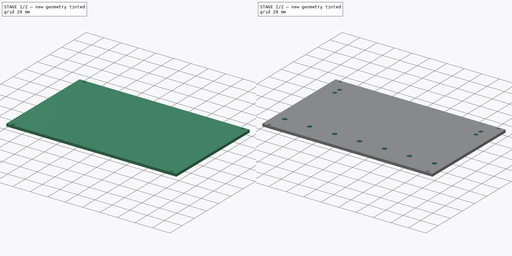
[diagram: build sequence overview — one tinted view per stage of 2, left to right]
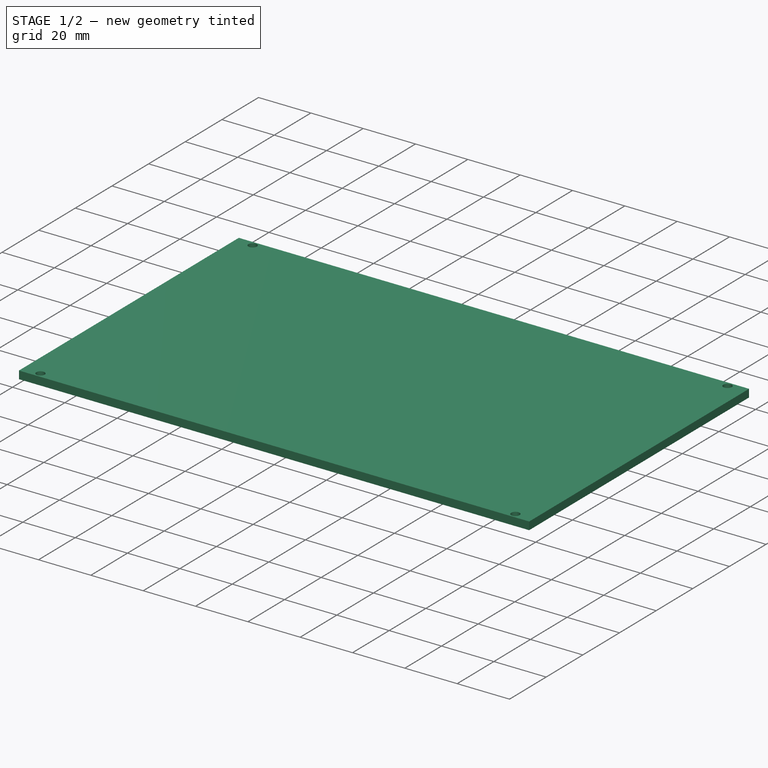
[diagram: stage 1 of 2 — iso view after this stage's code; geometry added in this stage tinted green]
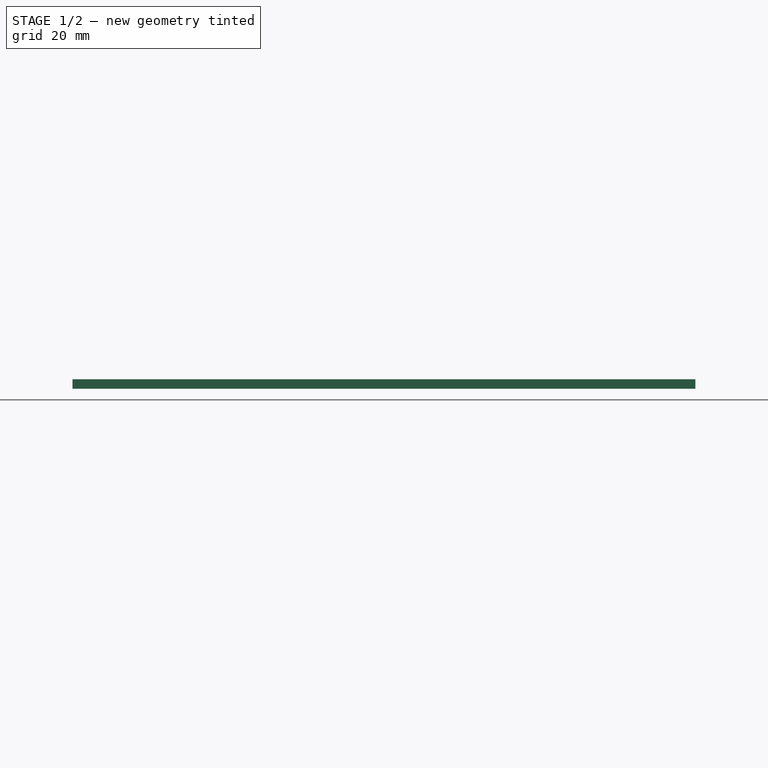
[diagram: stage 1 of 2 — front view after this stage's code; geometry added in this stage tinted green]
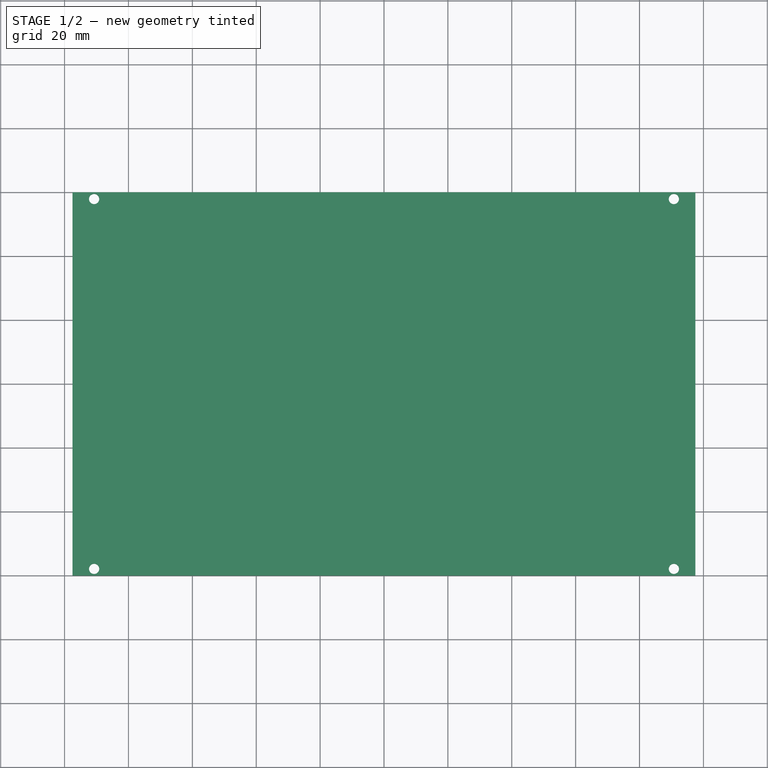
[diagram: stage 1 of 2 — top view after this stage's code; geometry added in this stage tinted green]
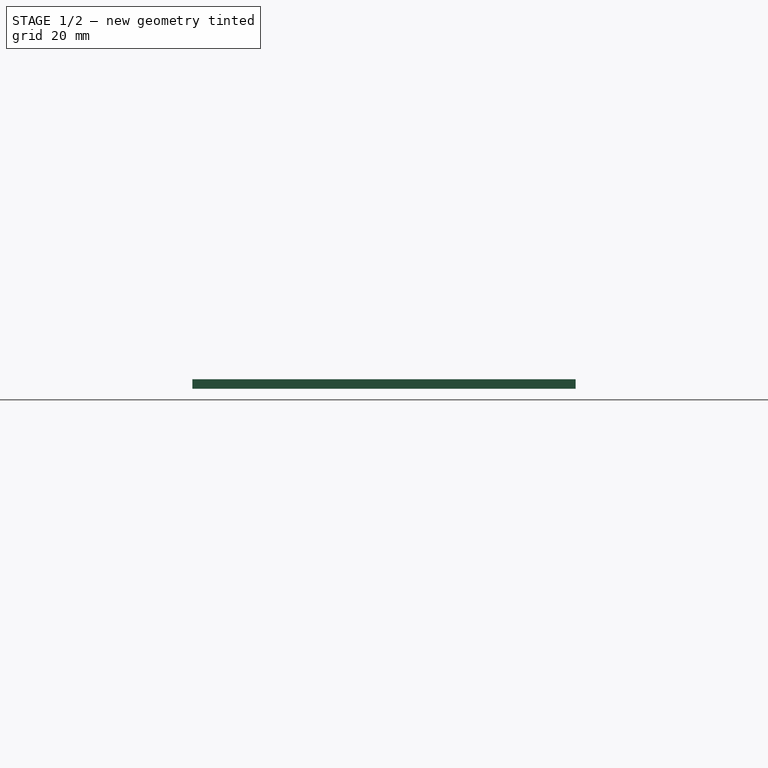
[diagram: stage 1 of 2 — right view after this stage's code; geometry added in this stage tinted green]
FCSTD DOCUMENT
Label: relay-mounting-plate
objects: Sketcher::SketchObject×3, PartDesign::Pocket×2, PartDesign::Pad×1
note: 9 computed .brp shape members not serialized (recipe doc carries the construction recipe); baked Part::Feature solids carry a one-line shape summary decoded from their .brp

FEATURE [Sketcher::SketchObject] Sketch
  sketch-geometry (4):
    g0: LineSegment StartX=-97.5 StartY=60 StartZ=0 EndX=97.5 EndY=60 EndZ=0
    g1: LineSegment StartX=97.5 StartY=60 StartZ=0 EndX=97.5 EndY=-60 EndZ=0
    g2: LineSegment StartX=97.5 StartY=-60 StartZ=0 EndX=-97.5 EndY=-60 EndZ=0
    g3: LineSegment StartX=-97.5 StartY=-60 StartZ=0 EndX=-97.5 EndY=60 EndZ=0
  constraints (12):
    c: Coincident(g0,g1)
    c: Coincident(g1,g2)
    c: Coincident(g2,g3)
    c: Coincident(g3,g0)
    c: Horizontal(g0)
    c: Horizontal(g2)
    c: Vertical(g1)
    c: Vertical(g3)
    c: Symmetric(g0,g2,g-1)
    c: Symmetric(g0,g0,g-2)
    c: DistanceX(g0) = 195
    c: DistanceY(g1) = -120
FEATURE [PartDesign::Pad] Pad
  Length = 3
  Length2 = 100
  Sketch = -> Sketch
  Type = 0
FEATURE [Sketcher::SketchObject] Sketch001
  Placement = pos=(0,0,3) rot=(0,0,1;0rad)
  Support = -> Pad [Face6]
  sketch-geometry (4):
    g0: Circle CenterX=-90.75 CenterY=57.9 CenterZ=0 NormalX=0 NormalY=0 NormalZ=1 Radius=1.6
    g1: Circle CenterX=90.75 CenterY=57.9 CenterZ=0 NormalX=0 NormalY=0 NormalZ=1 Radius=1.6
    g2: Circle CenterX=-90.75 CenterY=-57.9 CenterZ=0 NormalX=0 NormalY=0 NormalZ=1 Radius=1.6
    g3: Circle CenterX=90.75 CenterY=-57.9 CenterZ=0 NormalX=0 NormalY=0 NormalZ=1 Radius=1.6
  constraints (9):
    c: Equal(g0,g2)
    c: Equal(g2,g3)
    c: Equal(g3,g1)
    c: Radius(g1) = 1.6
    c: Symmetric(g0,g1,g-2)
    c: Symmetric(g0,g2,g-1)
    c: Symmetric(g3,g1,g-1)
    c: DistanceX(g0,g1) = 181.5
    c: DistanceY(g0,g2) = -115.8
FEATURE [PartDesign::Pocket] Pocket
  Length = 5
  Sketch = -> Sketch001
  Type = 0
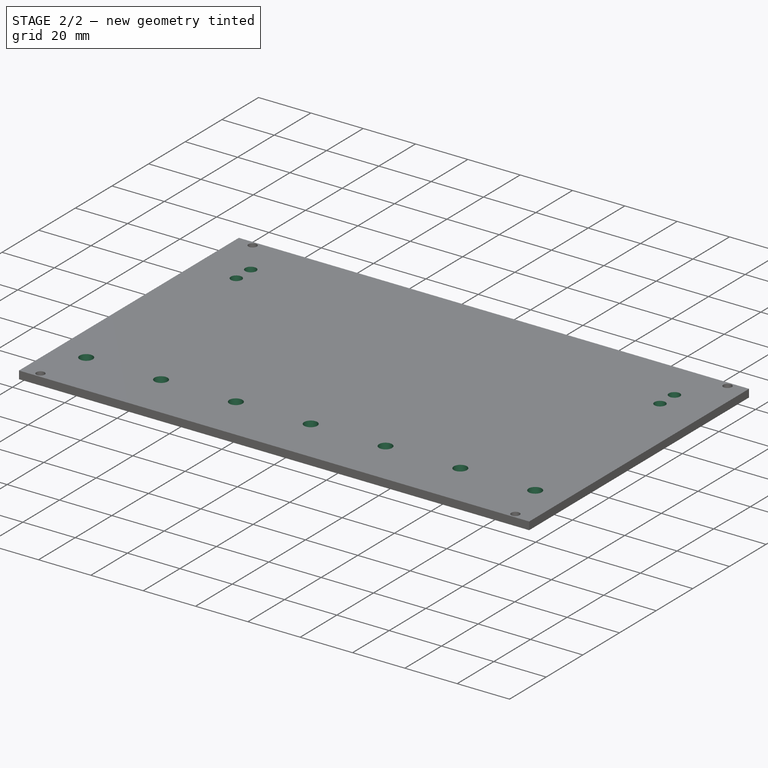
[diagram: stage 2 of 2 — iso view after this stage's code; geometry added in this stage tinted green]
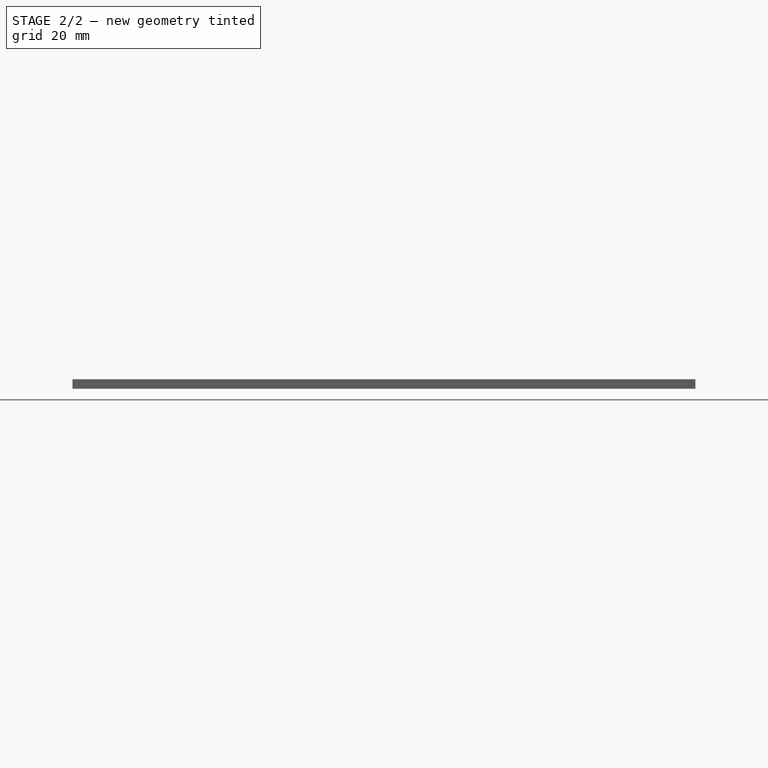
[diagram: stage 2 of 2 — front view after this stage's code; geometry added in this stage tinted green]
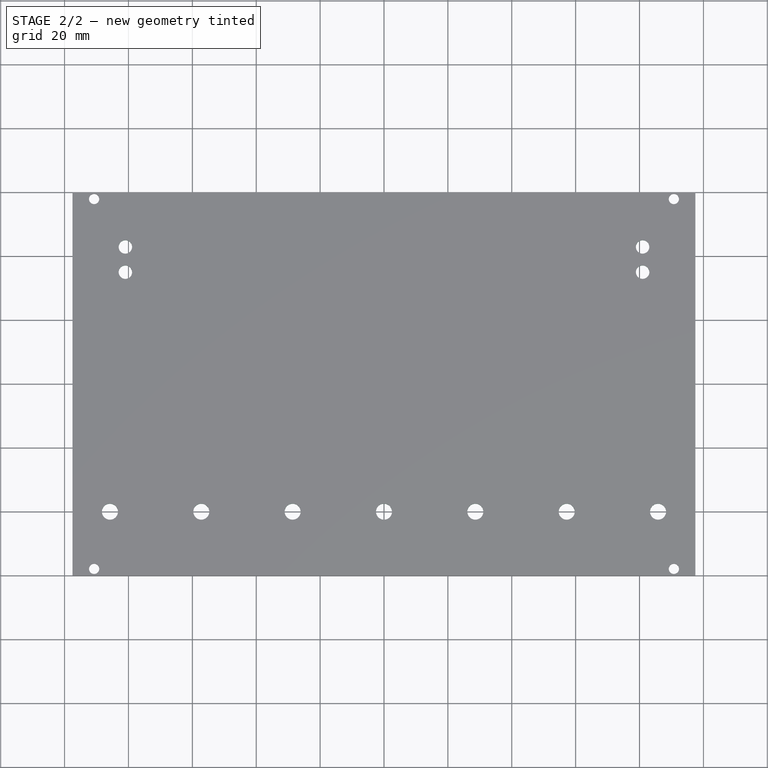
[diagram: stage 2 of 2 — top view after this stage's code; geometry added in this stage tinted green]
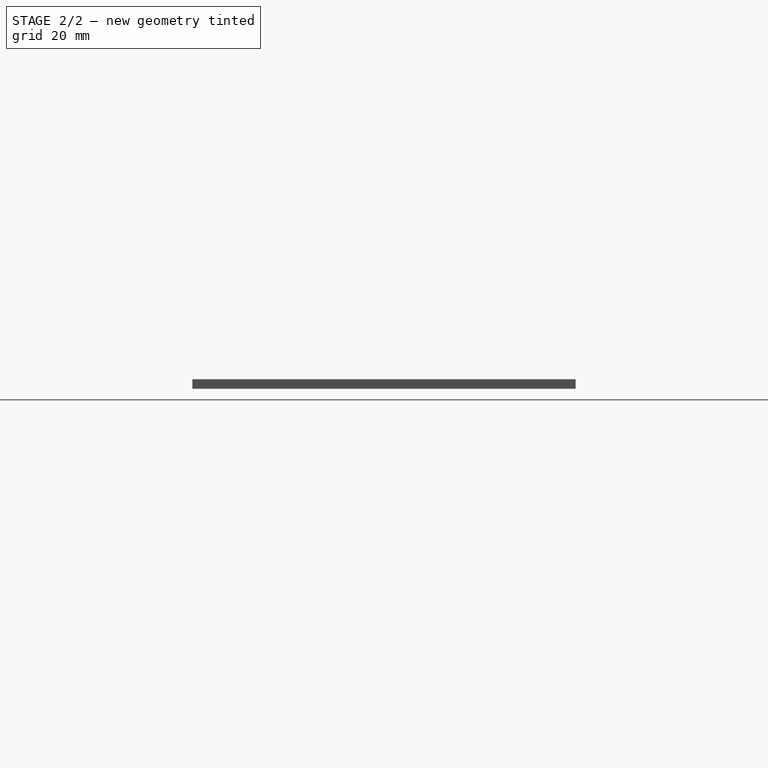
[diagram: stage 2 of 2 — right view after this stage's code; geometry added in this stage tinted green]
FEATURE [Sketcher::SketchObject] Sketch002
  Placement = pos=(0,0,3) rot=(0,0,1;0rad)
  Support = -> Pocket [Face5]
  sketch-geometry (20):
    g0: Circle CenterX=-57.2 CenterY=-40 CenterZ=0 NormalX=0 NormalY=0 NormalZ=1 Radius=2.5
    g1: LineSegment [constr] StartX=-57.2 StartY=-40 StartZ=0 EndX=-28.6 EndY=-40 EndZ=0
    g2: LineSegment [constr] StartX=-28.6 StartY=-40 StartZ=0 EndX=0 EndY=-40 EndZ=0
    g3: LineSegment [constr] StartX=0 StartY=-40 StartZ=0 EndX=28.6 EndY=-40 EndZ=0
    g4: LineSegment [constr] StartX=28.6 StartY=-40 StartZ=0 EndX=57.2 EndY=-40 EndZ=0
    g5: Circle CenterX=-28.6 CenterY=-40 CenterZ=0 NormalX=0 NormalY=0 NormalZ=1 Radius=2.5
    g6: Circle CenterX=0 CenterY=-40 CenterZ=0 NormalX=0 NormalY=0 NormalZ=1 Radius=2.5
    g7: Circle CenterX=28.6 CenterY=-40 CenterZ=0 NormalX=0 NormalY=0 NormalZ=1 Radius=2.5
    g8: Circle CenterX=57.2 CenterY=-40 CenterZ=0 NormalX=0 NormalY=0 NormalZ=1 Radius=2.5
    g9: LineSegment [constr] StartX=-57.2 StartY=25 StartZ=0 EndX=57.2 EndY=25 EndZ=0
    g10: LineSegment [constr] StartX=-57.2 StartY=25 StartZ=0 EndX=-57.2 EndY=-40 EndZ=0
    g11: Circle CenterX=-80.965 CenterY=42.9 CenterZ=0 NormalX=0 NormalY=0 NormalZ=1 Radius=2.1
    g12: Circle CenterX=-80.965 CenterY=35 CenterZ=0 NormalX=0 NormalY=0 NormalZ=1 Radius=2.1
    g13: Circle CenterX=80.965 CenterY=42.9 CenterZ=0 NormalX=0 NormalY=0 NormalZ=1 Radius=2.1
    g14: Circle CenterX=80.965 CenterY=35 CenterZ=0 NormalX=0 NormalY=0 NormalZ=1 Radius=2.1
    g15: LineSegment [constr] StartX=-80.965 StartY=42.9 StartZ=0 EndX=-80.965 EndY=35 EndZ=0
    g16: Circle CenterX=-85.8 CenterY=-40 CenterZ=0 NormalX=0 NormalY=0 NormalZ=1 Radius=2.5
    g17: Circle CenterX=85.8 CenterY=-40 CenterZ=0 NormalX=0 NormalY=0 NormalZ=1 Radius=2.5
    g18: LineSegment [constr] StartX=-85.8 StartY=-40 StartZ=0 EndX=-57.2 EndY=-40 EndZ=0
    g19: LineSegment [constr] StartX=57.2 StartY=-40 StartZ=0 EndX=85.8 EndY=-40 EndZ=0
  constraints (51):
    c: Coincident(g1,g0)
    c: Horizontal(g1)
    c: Coincident(g2,g1)
    c: Horizontal(g2)
    c: Coincident(g3,g2)
    c: Horizontal(g3)
    c: Coincident(g4,g3)
    c: Horizontal(g4)
    c: Equal(g1,g2)
    c: Equal(g2,g3)
    c: Equal(g3,g4)
    c: PointOnObject(g2,g-2)
    c: DistanceX(g1) = 28.6
    c: Coincident(g5,g1)
    c: Coincident(g6,g2)
    c: Coincident(g7,g3)
    c: Coincident(g8,g4)
    c: Equal(g8,g7)
    c: Equal(g7,g6)
    c: Equal(g6,g5)
    c: Equal(g5,g0)
    c: Radius(g8) = 2.5
    c: DistanceY(g-1,g2) = -40
    c: Horizontal(g9)
    c: Vertical(g10)
    c: Coincident(g10,g9)
    c: Coincident(g0,g10)
    c: Symmetric(g9,g9,g-2)
    c: DistanceY(g10) = -65
    c: Symmetric(g12,g14,g-2)
    c: Symmetric(g11,g13,g-2)
    c: Coincident(g15,g11)
    c: Coincident(g15,g12)
    c: Vertical(g15)
    c: DistanceY(g15) = -7.9
    c: DistanceX(g11,g13) = 161.93
    c: DistanceY(g-1,g12) = 35
    c: Equal(g11,g12)
    c: Equal(g12,g14)
    c: Equal(g14,g13)
    c: Radius(g13) = 2.1
    c: Coincident(g18,g16)
    c: Coincident(g18,g0)
    c: Horizontal(g18)
    c: Equal(g16,g0)
    c: Equal(g18,g1)
    c: Equal(g17,g8)
    c: Coincident(g19,g4)
    c: Coincident(g19,g17)
    c: Horizontal(g19)
    c: Equal(g19,g4)
FEATURE [PartDesign::Pocket] Pocket001
  Length = 5
  Sketch = -> Sketch002
  Type = 0
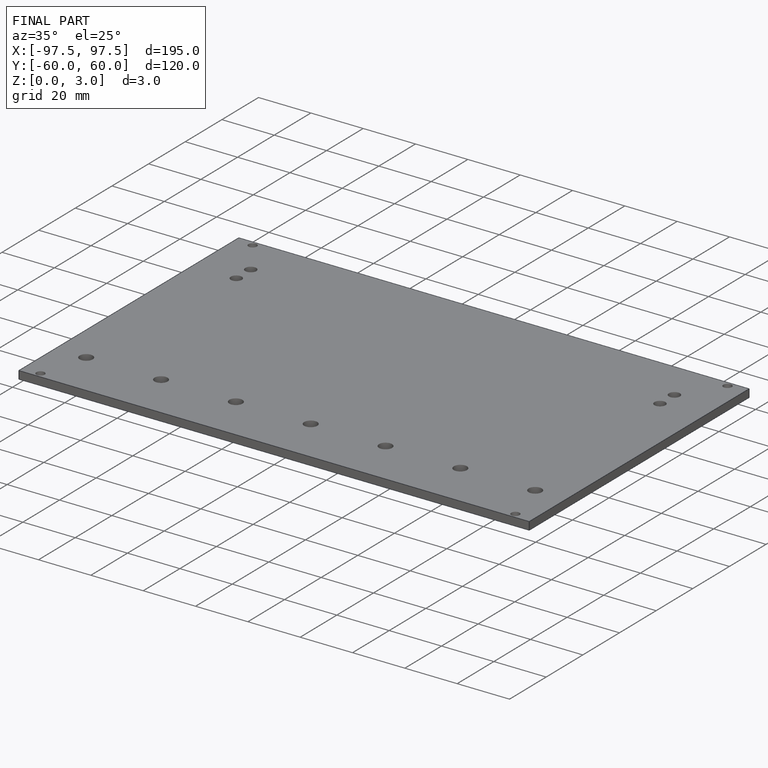
[diagram: finished part — iso view with bounding-box wireframe]
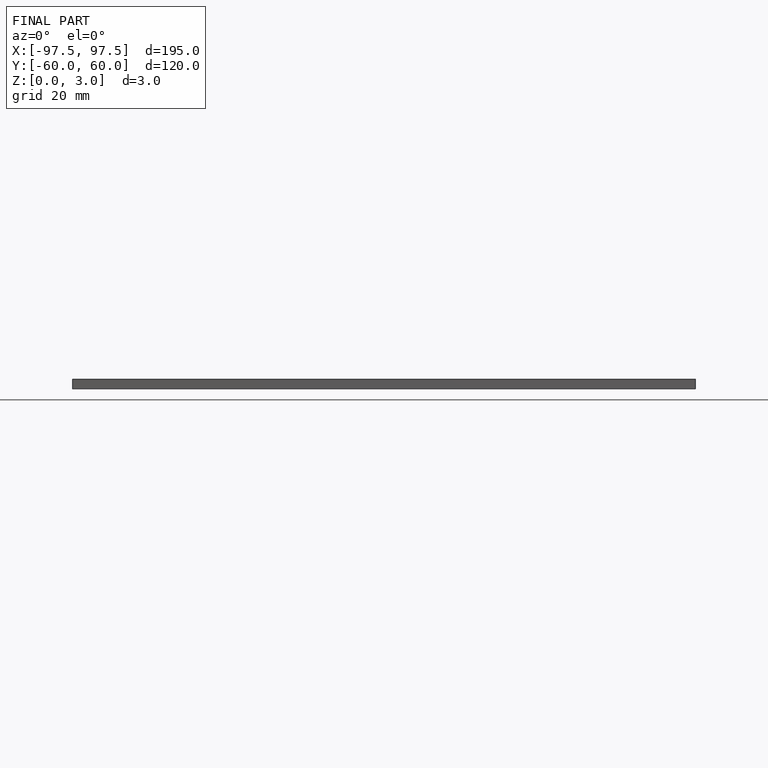
[diagram: finished part — front view with bounding-box wireframe]
